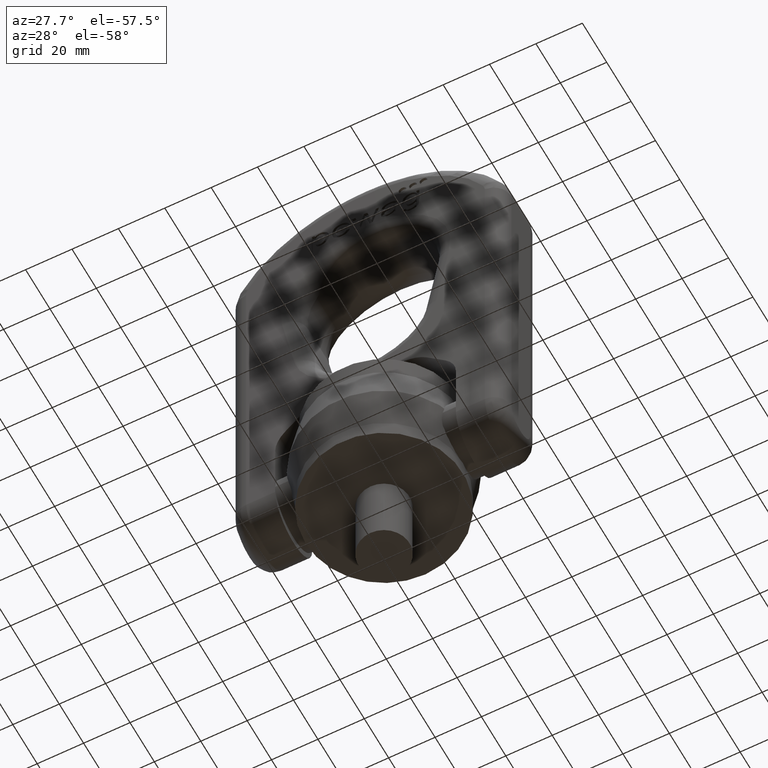
[diagram: clean part render]
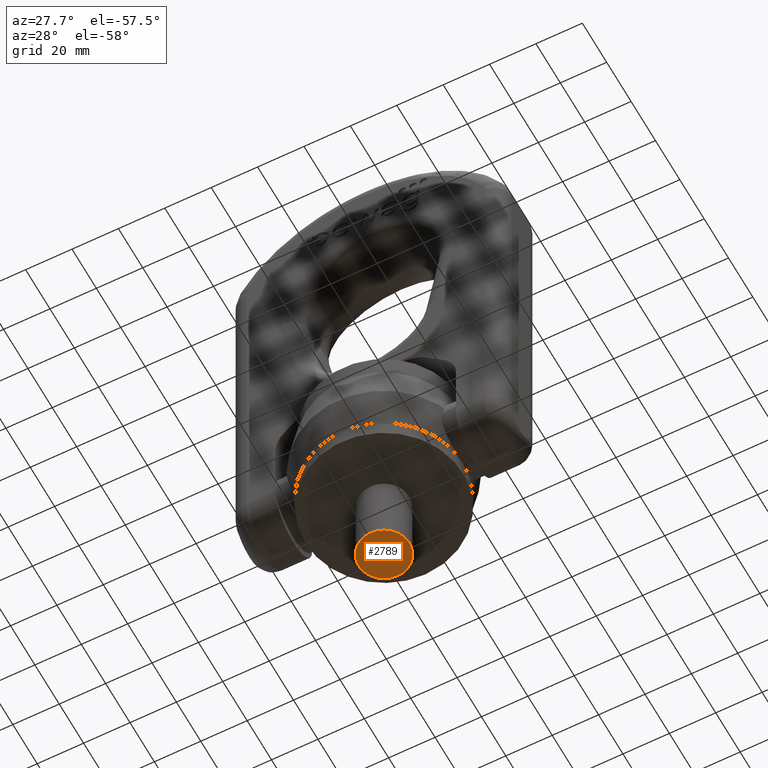
[diagram: same view with one face highlighted and labeled with its STEP entity id]
A machine part, auxiliary view. The second image highlights one B-rep face of the part: STEP entity #2789.
In plain terms, the highlighted planar face has unit normal (0, 0, -1).
Its self-contained STEP definition (entity closure, byte-faithful):
#2437=FACE_OUTER_BOUND('',#3143,.T.);
#2666=PLANE('',#5835);
#2789=ADVANCED_FACE('',(#2437),#2666,.T.);
#3143=EDGE_LOOP('',(#3439));
#3439=ORIENTED_EDGE('',*,*,#5120,.T.);
#4700=VERTEX_POINT('',#6946);
#5120=EDGE_CURVE('',#4700,#4700,#5752,.T.);
#5752=CIRCLE('',#5833,11.);
#5833=AXIS2_PLACEMENT_3D('',#6945,#6076,#6077);
#5835=AXIS2_PLACEMENT_3D('',#6948,#6080,#6081);
#6076=DIRECTION('',(0.,0.,-1.));
#6077=DIRECTION('',(-6.12323399573677E-17,1.,0.));
#6080=DIRECTION('',(0.,0.,-1.));
#6081=DIRECTION('',(-1.,0.,0.));
#6945=CARTESIAN_POINT('',(0.,0.,-33.));
#6946=CARTESIAN_POINT('',(-6.73555739531044E-16,11.,-33.));
#6948=CARTESIAN_POINT('',(0.,0.,-33.));